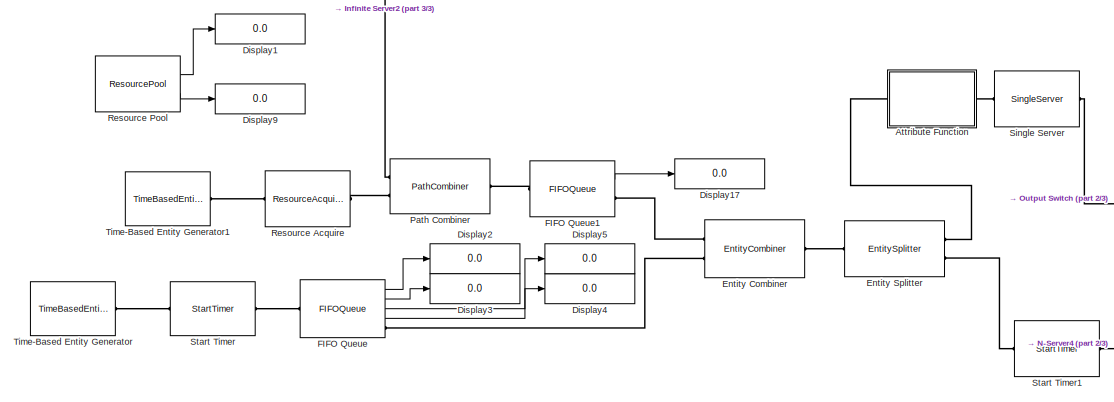
[diagram: root canvas - part 1/3, middle left region]
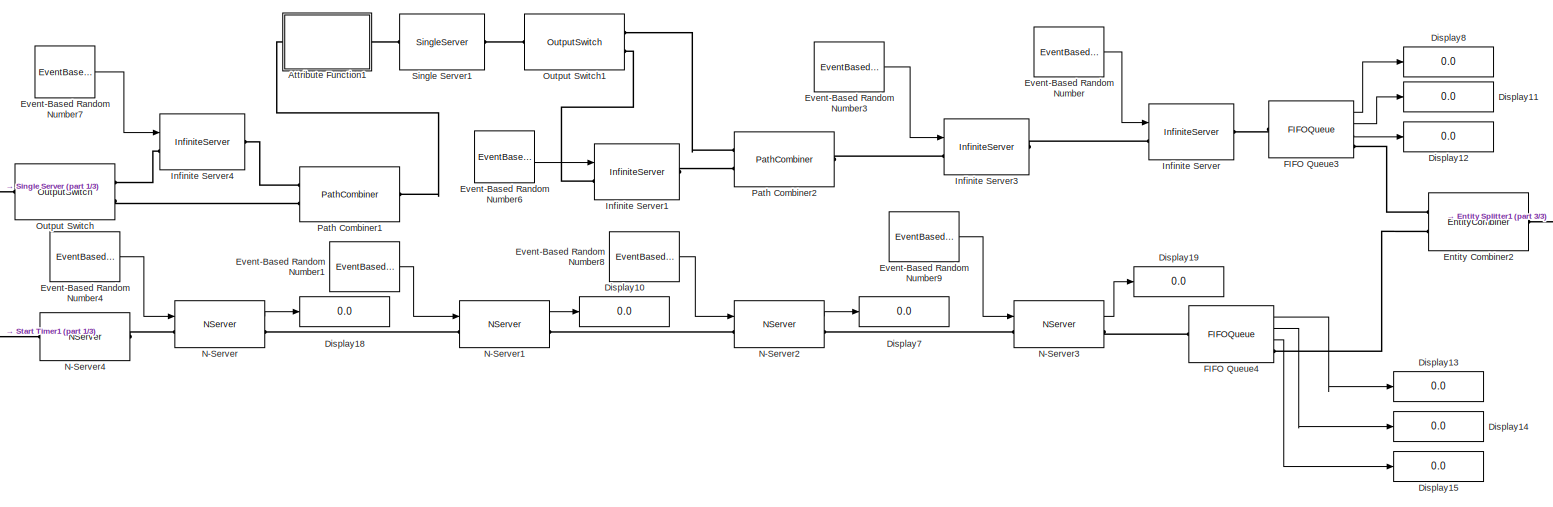
[diagram: root canvas - part 2/3, central region]
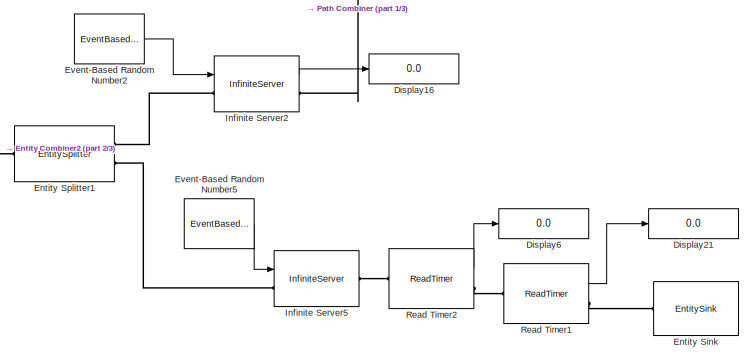
[diagram: root canvas - part 3/3, middle right region]
MODEL slx_54bfce2ac435
KIND model
CONFIG AbsTol = auto
CONFIG EnableMultiTasking = off
CONFIG FixedStep = auto
CONFIG MaxStep = auto
CONFIG MinStep = auto
CONFIG RelTol = 1e-3
CONFIG SampleTimeConstraint = Unconstrained
CONFIG Solver = VariableStepAuto
CONFIG SolverName = VariableStepAuto
CONFIG StartTime = 0.0
CONFIG StopTime = 720000
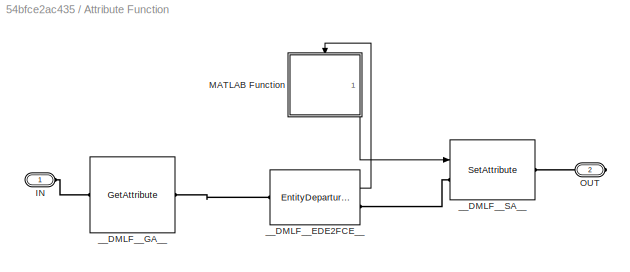
BLOCK [SubSystem] Attribute Function
  CopyFcn = des.afb.attributefunction_support(gcb,'CopyFcn');
  ErrorFcn = des.afb.error_redirect
  LoadFcn = des.afb.attributefunction_support(gcb,'LoadFcn');
  MaskHideContents = on
  OpenFcn = des.afb.attributefunction_support(gcb,'OpenFcn');
  Ports = [0, 0, 0, 0, 0, 1, 1]
  RequestExecContextInheritance = off
  StartFcn = des.afb.attributefunction_support(gcb,'StartFcn');
BLOCK [PMIOPort] Attribute Function/IN
  Side = Left
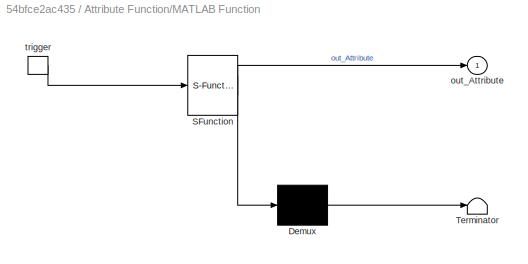
BLOCK [SubSystem] Attribute Function/MATLAB Function
  ErrorFcn = Stateflow.Translate.translate
  PermitHierarchicalResolution = ExplicitOnly
  Ports = [0, 1, 0, 1]
  RequestExecContextInheritance = off
  SFBlockType = MATLAB Function
  TreatAsAtomicUnit = on
BLOCK [Demux] Attribute Function/MATLAB Function/ Demux 
  Outputs = 1
  Ports = [1, 1]
BLOCK [S-Function] Attribute Function/MATLAB Function/ SFunction 
  EnableBusSupport = on
  FunctionName = sf_sfun
  PortCounts = [1 2]
  Ports = [1, 2]
  SFcnIsStateOwnerBlock = off
  SFunctionDeploymentMode = off
  Tag = Stateflow S-Function SIMU_MODEL3 1
BLOCK [Terminator] Attribute Function/MATLAB Function/ Terminator 
BLOCK [Outport] Attribute Function/MATLAB Function/out_Attribute
  IconDisplay = Port number
BLOCK [TriggerPort] Attribute Function/MATLAB Function/trigger
  Ports = [0, 1]
  ShowOutputPort = on
  TriggerType = function-call
  VariantControl = Variant
BLOCK [PMIOPort] Attribute Function/OUT
  Port = 2
  Side = Right
BLOCK [EntityDepartureFunctionCallGenerator] Attribute Function/__DMLF__EDE2FCE__
  IsInsideAFB = on
  OutputPortMap = o0
  Ports = [0, 1, 0, 0, 0, 1, 1]
  TimingFunctionCallF1 = Before entity departure
BLOCK [GetAttribute] Attribute Function/__DMLF__GA__
  EvaluatedDefaultAttributeValue = { }
  IsInsideAFB = on
  Ports = [0, 0, 0, 0, 0, 1, 1]
BLOCK [SetAttribute] Attribute Function/__DMLF__SA__
  AttributeFrom = Signal port
  AttributeName = Attribute
  EvaluatedAttributeValue = { []}
  InputPortMap = u0
  IsInsideAFB = on
  Ports = [1, 0, 0, 0, 0, 1, 1]
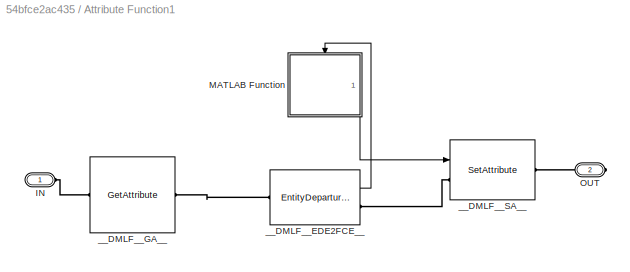
BLOCK [SubSystem] Attribute Function1
  CopyFcn = des.afb.attributefunction_support(gcb,'CopyFcn');
  ErrorFcn = des.afb.error_redirect
  LoadFcn = des.afb.attributefunction_support(gcb,'LoadFcn');
  MaskHideContents = on
  OpenFcn = des.afb.attributefunction_support(gcb,'OpenFcn');
  Ports = [0, 0, 0, 0, 0, 1, 1]
  RequestExecContextInheritance = off
  StartFcn = des.afb.attributefunction_support(gcb,'StartFcn');
BLOCK [PMIOPort] Attribute Function1/IN
  Side = Left
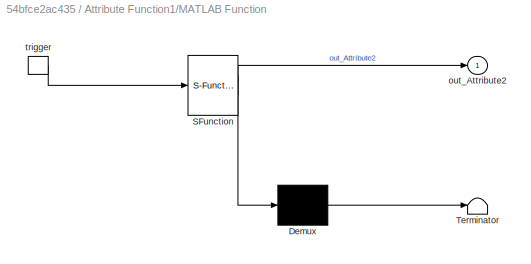
BLOCK [SubSystem] Attribute Function1/MATLAB Function
  ErrorFcn = Stateflow.Translate.translate
  PermitHierarchicalResolution = ExplicitOnly
  Ports = [0, 1, 0, 1]
  RequestExecContextInheritance = off
  SFBlockType = MATLAB Function
  TreatAsAtomicUnit = on
BLOCK [Demux] Attribute Function1/MATLAB Function/ Demux 
  Outputs = 1
  Ports = [1, 1]
BLOCK [S-Function] Attribute Function1/MATLAB Function/ SFunction 
  EnableBusSupport = on
  FunctionName = sf_sfun
  PortCounts = [1 2]
  Ports = [1, 2]
  SFcnIsStateOwnerBlock = off
  SFunctionDeploymentMode = off
  Tag = Stateflow S-Function SIMU_MODEL3 2
BLOCK [Terminator] Attribute Function1/MATLAB Function/ Terminator 
BLOCK [Outport] Attribute Function1/MATLAB Function/out_Attribute2
  IconDisplay = Port number
BLOCK [TriggerPort] Attribute Function1/MATLAB Function/trigger
  Ports = [0, 1]
  ShowOutputPort = on
  TriggerType = function-call
  VariantControl = Variant
BLOCK [PMIOPort] Attribute Function1/OUT
  Port = 2
  Side = Right
BLOCK [EntityDepartureFunctionCallGenerator] Attribute Function1/__DMLF__EDE2FCE__
  IsInsideAFB = on
  OutputPortMap = o0
  Ports = [0, 1, 0, 0, 0, 1, 1]
  TimingFunctionCallF1 = Before entity departure
BLOCK [GetAttribute] Attribute Function1/__DMLF__GA__
  EvaluatedDefaultAttributeValue = { }
  IsInsideAFB = on
  Ports = [0, 0, 0, 0, 0, 1, 1]
BLOCK [SetAttribute] Attribute Function1/__DMLF__SA__
  AttributeFrom = Signal port
  AttributeName = Attribute2
  EvaluatedAttributeValue = { []}
  InputPortMap = u0
  IsInsideAFB = on
  Ports = [1, 0, 0, 0, 0, 1, 1]
BLOCK [Display] Display1
  Decimation = 1
  Ports = [1]
BLOCK [Display] Display10
  Decimation = 1
  Ports = [1]
BLOCK [Display] Display11
  Decimation = 1
  Ports = [1]
BLOCK [Display] Display12
  Decimation = 1
  Ports = [1]
BLOCK [Display] Display13
  Decimation = 1
  Ports = [1]
BLOCK [Display] Display14
  Decimation = 1
  Ports = [1]
BLOCK [Display] Display15
  Decimation = 1
  Ports = [1]
BLOCK [Display] Display16
  Decimation = 1
  Ports = [1]
BLOCK [Display] Display17
  Decimation = 1
  Ports = [1]
BLOCK [Display] Display18
  Decimation = 1
  Ports = [1]
BLOCK [Display] Display19
  Decimation = 1
  Ports = [1]
BLOCK [Display] Display2
  Decimation = 1
  Ports = [1]
BLOCK [Display] Display21
  Decimation = 1
  Format = long
  Ports = [1]
BLOCK [Display] Display3
  Decimation = 1
  Ports = [1]
BLOCK [Display] Display4
  Decimation = 1
  Ports = [1]
BLOCK [Display] Display5
  Decimation = 1
  Ports = [1]
BLOCK [Display] Display6
  Decimation = 1
  Ports = [1]
BLOCK [Display] Display7
  Decimation = 1
  Ports = [1]
BLOCK [Display] Display8
  Decimation = 1
  Ports = [1]
BLOCK [Display] Display9
  Decimation = 1
  Ports = [1]
BLOCK [EntityCombiner] Entity Combiner
  NumberInputPorts = 2
  Ports = [0, 0, 0, 0, 0, 2, 1]
BLOCK [EntityCombiner] Entity Combiner2
  NumberInputPorts = 2
  Ports = [0, 0, 0, 0, 0, 2, 1]
BLOCK [EntitySink] Entity Sink
  Ports = [0, 0, 0, 0, 0, 1]
BLOCK [EntitySplitter] Entity Splitter
  NumberOutputPorts = 2
  Ports = [0, 0, 0, 0, 0, 1, 2]
BLOCK [EntitySplitter] Entity Splitter1
  NumberOutputPorts = 2
  Ports = [0, 0, 0, 0, 0, 1, 2]
BLOCK [EventBasedRandomNumber] Event-Based Random Number
  OutputPortMap = o0
  Ports = [0, 1]
  Seed = 34425
  meanExp = 387
  meanNorm = 315
  stdNorm = 5
BLOCK [EventBasedRandomNumber] Event-Based Random Number1
  OutputPortMap = o0
  Ports = [0, 1]
  Seed = 3080
  meanExp = 234
  meanNorm = 7
  stdNorm = 38
BLOCK [EventBasedRandomNumber] Event-Based Random Number2
  OutputPortMap = o0
  Ports = [0, 1]
  Seed = 58140
  meanExp = 10
BLOCK [EventBasedRandomNumber] Event-Based Random Number3
  OutputPortMap = o0
  Ports = [0, 1]
  Seed = 11223
  meanExp = 10
  meanNorm = 12
  stdNorm = 3
BLOCK [EventBasedRandomNumber] Event-Based Random Number4
  OutputPortMap = o0
  Ports = [0, 1]
  Seed = 343
  meanExp = 234
  meanNorm = 7
  stdNorm = 38
BLOCK [EventBasedRandomNumber] Event-Based Random Number5
  OutputPortMap = o0
  Ports = [0, 1]
  Seed = 61357
  meanExp = 10
BLOCK [EventBasedRandomNumber] Event-Based Random Number6
  OutputPortMap = o0
  Ports = [0, 1]
  Seed = 251
  meanExp = 3
  meanNorm = 12
  stdNorm = 3
BLOCK [EventBasedRandomNumber] Event-Based Random Number7
  OutputPortMap = o0
  Ports = [0, 1]
  Seed = 2512
  meanExp = 3
  meanNorm = 12
  stdNorm = 3
BLOCK [EventBasedRandomNumber] Event-Based Random Number8
  OutputPortMap = o0
  Ports = [0, 1]
  Seed = 3423
  meanExp = 234
  meanNorm = 7
  stdNorm = 38
BLOCK [EventBasedRandomNumber] Event-Based Random Number9
  OutputPortMap = o0
  Ports = [0, 1]
  Seed = 3423
  meanExp = 234
  meanNorm = 7
  stdNorm = 38
BLOCK [FIFOQueue] FIFO Queue
  Capacity = 10000
  OutputPortMap = o0,o1,o2,o3
  Ports = [0, 4, 0, 0, 0, 1, 1]
  StatAverageQueueLength = on
  StatAverageWait = on
  StatNumberDeparted = on
  StatNumberInBlock = on
BLOCK [FIFOQueue] FIFO Queue1
  Capacity = 100
  OutputPortMap = o3
  Ports = [0, 1, 0, 0, 0, 1, 1]
  StatAverageQueueLength = on
BLOCK [FIFOQueue] FIFO Queue3
  OutputPortMap = o0,o2,o3
  Ports = [0, 3, 0, 0, 0, 1, 1]
  StatAverageQueueLength = on
  StatAverageWait = on
  StatNumberDeparted = on
BLOCK [FIFOQueue] FIFO Queue4
  Capacity = 6
  OutputPortMap = o0,o2,o3
  Ports = [0, 3, 0, 0, 0, 1, 1]
  StatAverageQueueLength = on
  StatAverageWait = on
  StatNumberDeparted = on
BLOCK [InfiniteServer] Infinite Server
  InputPortMap = u0
  Ports = [1, 0, 0, 0, 0, 1, 1]
  ServiceTimeFrom = Signal port t
BLOCK [InfiniteServer] Infinite Server1
  InputPortMap = u0
  Ports = [1, 0, 0, 0, 0, 1, 1]
  ServiceTimeFrom = Signal port t
BLOCK [InfiniteServer] Infinite Server2
  InputPortMap = u0
  OutputPortMap = o0
  Ports = [1, 1, 0, 0, 0, 1, 1]
  ServiceTimeFrom = Signal port t
  StatNumberDeparted = on
BLOCK [InfiniteServer] Infinite Server3
  InputPortMap = u0
  Ports = [1, 0, 0, 0, 0, 1, 1]
  ServiceTimeFrom = Signal port t
BLOCK [InfiniteServer] Infinite Server4
  InputPortMap = u0
  Ports = [1, 0, 0, 0, 0, 1, 1]
  ServiceTimeFrom = Signal port t
BLOCK [InfiniteServer] Infinite Server5
  InputPortMap = u0
  Ports = [1, 0, 0, 0, 0, 1, 1]
  ServiceTimeFrom = Signal port t
BLOCK [NServer] N-Server
  InputPortMap = u0
  NumberOfServers = 6
  OutputPortMap = o5
  Ports = [1, 1, 0, 0, 0, 1, 1]
  ServiceTimeFrom = Signal port t
  StatUtilization = on
BLOCK [NServer] N-Server1
  InputPortMap = u0
  NumberOfServers = 6
  OutputPortMap = o5
  Ports = [1, 1, 0, 0, 0, 1, 1]
  ServiceTimeFrom = Signal port t
  StatUtilization = on
BLOCK [NServer] N-Server2
  InputPortMap = u0
  NumberOfServers = 6
  OutputPortMap = o5
  Ports = [1, 1, 0, 0, 0, 1, 1]
  ServiceTimeFrom = Signal port t
  StatUtilization = on
BLOCK [NServer] N-Server3
  InputPortMap = u0
  NumberOfServers = 6
  OutputPortMap = o5
  Ports = [1, 1, 0, 0, 0, 1, 1]
  ServiceTimeFrom = Signal port t
  StatUtilization = on
BLOCK [NServer] N-Server4
  NumberOfServers = 10
  Ports = [0, 0, 0, 0, 0, 1, 1]
  ServiceTime = 0
BLOCK [OutputSwitch] Output Switch
  AttributeName = Attribute
  NumberOutputPorts = 2
  Ports = [0, 0, 0, 0, 0, 1, 2]
  SwitchingCriterion = From attribute
BLOCK [OutputSwitch] Output Switch1
  AttributeName = Attribute2
  NumberOutputPorts = 2
  Ports = [0, 0, 0, 0, 0, 1, 2]
  SwitchingCriterion = From attribute
BLOCK [PathCombiner] Path Combiner
  NumberInputPorts = 2
  Ports = [0, 0, 0, 0, 0, 2, 1]
BLOCK [PathCombiner] Path Combiner1
  NumberInputPorts = 2
  Ports = [0, 0, 0, 0, 0, 2, 1]
BLOCK [PathCombiner] Path Combiner2
  NumberInputPorts = 2
  Ports = [0, 0, 0, 0, 0, 2, 1]
BLOCK [ReadTimer] Read Timer1
  OutputPortMap = o3
  Ports = [0, 1, 0, 0, 0, 1, 1]
  StatAverageTimeElapsed = on
  TimerTag = T2
BLOCK [ReadTimer] Read Timer2
  OutputPortMap = o3
  Ports = [0, 1, 0, 0, 0, 1, 1]
  StatAverageTimeElapsed = on
BLOCK [ResourceAcquire] Resource Acquire
  Capacity = 100
  EvaluatedResourceAmount = { 1}
  Ports = [0, 0, 0, 0, 0, 1, 1]
  ResourceName = robot
BLOCK [ResourcePool] Resource Pool
  OutputPortMap = o0,o1
  Ports = [0, 2]
  ResourceAmount = 18
  ResourceName = robot
  StatAmountInUse = on
  StatUtilization = on
BLOCK [SingleServer] Single Server
  Ports = [0, 0, 0, 0, 0, 1, 1]
  ServiceTime = 0
BLOCK [SingleServer] Single Server1
  Ports = [0, 0, 0, 0, 0, 1, 1]
  ServiceTime = 0
BLOCK [StartTimer] Start Timer
  Ports = [0, 0, 0, 0, 0, 1, 1]
  TimerStartedOption = Continue
  TimerTag = T2
BLOCK [StartTimer] Start Timer1
  Ports = [0, 0, 0, 0, 0, 1, 1]
  TimerStartedOption = Continue
BLOCK [TimeBasedEntityGenerator] Time-Based Entity Generator
  Distribution = Exponential
  InitialSeed = 40859
  Mean = 3600/60
  Ports = [0, 0, 0, 0, 0, 0, 1]
BLOCK [TimeBasedEntityGenerator] Time-Based Entity Generator1
  Mean = 3600/20
  Period = 0.00000001
  Ports = [0, 0, 0, 0, 0, 0, 1]
LINE Attribute Function/MATLAB Function:1 -> Attribute Function/__DMLF__SA__:1
LINE Attribute Function/__DMLF__EDE2FCE__:1 -> Attribute Function/MATLAB Function:trigger
LINE Attribute Function1/MATLAB Function:1 -> Attribute Function1/__DMLF__SA__:1
LINE Attribute Function1/__DMLF__EDE2FCE__:1 -> Attribute Function1/MATLAB Function:trigger
LINE Event-Based Random Number1:1 -> N-Server1:1
LINE Event-Based Random Number2:1 -> Infinite Server2:1
LINE Event-Based Random Number3:1 -> Infinite Server3:1
LINE Event-Based Random Number4:1 -> N-Server:1
LINE Event-Based Random Number5:1 -> Infinite Server5:1
LINE Event-Based Random Number6:1 -> Infinite Server1:1
LINE Event-Based Random Number7:1 -> Infinite Server4:1
LINE Event-Based Random Number8:1 -> N-Server2:1
LINE Event-Based Random Number9:1 -> N-Server3:1
LINE Event-Based Random Number:1 -> Infinite Server:1
LINE FIFO Queue1:1 -> Display17:1
LINE FIFO Queue3:1 -> Display8:1
LINE FIFO Queue3:2 -> Display11:1
LINE FIFO Queue3:3 -> Display12:1
LINE FIFO Queue4:1 -> Display13:1
LINE FIFO Queue4:2 -> Display14:1
LINE FIFO Queue4:3 -> Display15:1
LINE FIFO Queue:1 -> Display2:1
LINE FIFO Queue:2 -> Display3:1
LINE FIFO Queue:3 -> Display5:1
LINE FIFO Queue:4 -> Display4:1
LINE Infinite Server2:1 -> Display16:1
LINE N-Server1:1 -> Display10:1
LINE N-Server2:1 -> Display7:1
LINE N-Server3:1 -> Display19:1
LINE N-Server:1 -> Display18:1
LINE Read Timer1:1 -> Display21:1
LINE Read Timer2:1 -> Display6:1
LINE Resource Pool:1 -> Display1:1
LINE Resource Pool:2 -> Display9:1
PLINE Attribute Function/IN:RConn1 -- Attribute Function/__DMLF__GA__:LConn1
PLINE Attribute Function/OUT:RConn1 -- Attribute Function/__DMLF__SA__:RConn1
PLINE Attribute Function/__DMLF__EDE2FCE__:LConn1 -- Attribute Function/__DMLF__GA__:RConn1
PLINE Attribute Function/__DMLF__EDE2FCE__:RConn1 -- Attribute Function/__DMLF__SA__:LConn1
PLINE Attribute Function1/IN:RConn1 -- Attribute Function1/__DMLF__GA__:LConn1
PLINE Attribute Function1/OUT:RConn1 -- Attribute Function1/__DMLF__SA__:RConn1
PLINE Attribute Function1/__DMLF__EDE2FCE__:LConn1 -- Attribute Function1/__DMLF__GA__:RConn1
PLINE Attribute Function1/__DMLF__EDE2FCE__:RConn1 -- Attribute Function1/__DMLF__SA__:LConn1
PLINE Attribute Function1:LConn1 -- Path Combiner1:RConn1
PLINE Attribute Function1:RConn1 -- Single Server1:LConn1
PLINE Attribute Function:LConn1 -- Entity Splitter:RConn1
PLINE Attribute Function:RConn1 -- Single Server:LConn1
PLINE Entity Combiner2:LConn1 -- FIFO Queue3:RConn1
PLINE Entity Combiner2:LConn2 -- FIFO Queue4:RConn1
PLINE Entity Combiner2:RConn1 -- Entity Splitter1:LConn1
PLINE Entity Combiner:LConn1 -- FIFO Queue1:RConn1
PLINE Entity Combiner:LConn2 -- FIFO Queue:RConn1
PLINE Entity Combiner:RConn1 -- Entity Splitter:LConn1
PLINE Entity Sink:LConn1 -- Read Timer1:RConn1
PLINE Entity Splitter1:RConn1 -- Infinite Server2:LConn1
PLINE Entity Splitter1:RConn2 -- Infinite Server5:LConn1
PLINE Entity Splitter:RConn2 -- Start Timer1:LConn1
PLINE FIFO Queue1:LConn1 -- Path Combiner:RConn1
PLINE FIFO Queue3:LConn1 -- Infinite Server:RConn1
PLINE FIFO Queue4:LConn1 -- N-Server3:RConn1
PLINE FIFO Queue:LConn1 -- Start Timer:RConn1
PLINE Infinite Server1:LConn1 -- Output Switch1:RConn2
PLINE Infinite Server1:RConn1 -- Path Combiner2:LConn2
PLINE Infinite Server2:RConn1 -- Path Combiner:LConn1
PLINE Infinite Server3:LConn1 -- Path Combiner2:RConn1
PLINE Infinite Server3:RConn1 -- Infinite Server:LConn1
PLINE Infinite Server4:LConn1 -- Output Switch:RConn1
PLINE Infinite Server4:RConn1 -- Path Combiner1:LConn1
PLINE Infinite Server5:RConn1 -- Read Timer2:LConn1
PLINE N-Server1:LConn1 -- N-Server:RConn1
PLINE N-Server1:RConn1 -- N-Server2:LConn1
PLINE N-Server2:RConn1 -- N-Server3:LConn1
PLINE N-Server4:LConn1 -- Start Timer1:RConn1
PLINE N-Server4:RConn1 -- N-Server:LConn1
PLINE Output Switch1:LConn1 -- Single Server1:RConn1
PLINE Output Switch1:RConn1 -- Path Combiner2:LConn1
PLINE Output Switch:LConn1 -- Single Server:RConn1
PLINE Output Switch:RConn2 -- Path Combiner1:LConn2
PLINE Path Combiner:LConn2 -- Resource Acquire:RConn1
PLINE Read Timer1:LConn1 -- Read Timer2:RConn1
PLINE Resource Acquire:LConn1 -- Time-Based Entity Generator1:RConn1
PLINE Start Timer:LConn1 -- Time-Based Entity Generator:RConn1
CHART Attribute Function/MATLAB Function states=1 transitions=1
  STATE_LABEL 'eML_blk_kernel()'
  STATE_LABEL 'SCRIPT:\nfunction out_Attribute = fcn()\n%FCN    Access and modify attributes with MATLAB \n% \n% Input arguments must match the attribute names.\n% Output arguments must be out_<AttributeName>,\n% e.g., out_ServiceTime where ServiceTime is the attribute name.\n% \n% The output attribute will be created if it is not present.\n%\n\nx = rand();\nif x<= 0.5\n    out_Attribute = 1;\nelse\n    out_Attribute = 2;\nend\n...<+1ch>'
CHART Attribute Function1/MATLAB Function states=1 transitions=1
  STATE_LABEL 'eML_blk_kernel()'
  STATE_LABEL 'SCRIPT:\nfunction out_Attribute2 = fcn()\n%FCN    Access and modify attributes with MATLAB \n% \n% Input arguments must match the attribute names.\n% Output arguments must be out_<AttributeName>,\n% e.g., out_ServiceTime where ServiceTime is the attribute name.\n% \n% The output attribute will be created if it is not present.\n%\n\nx = rand();\nif x<= 0.5\n    out_Attribute2 = 1;\nelse\n    out_Attribute2 = 2;\ne...<+4ch>'
